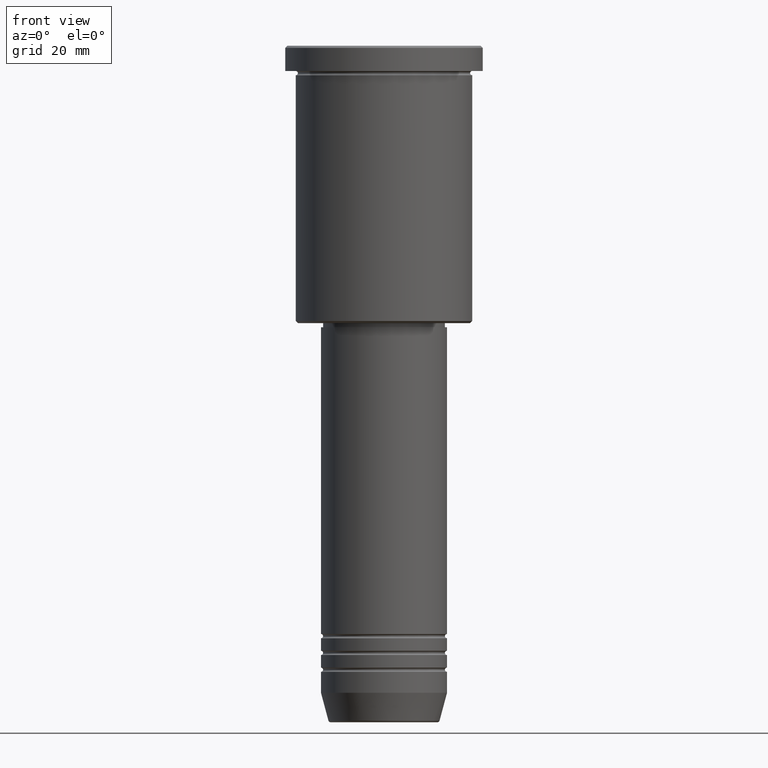
[diagram: clean part render]
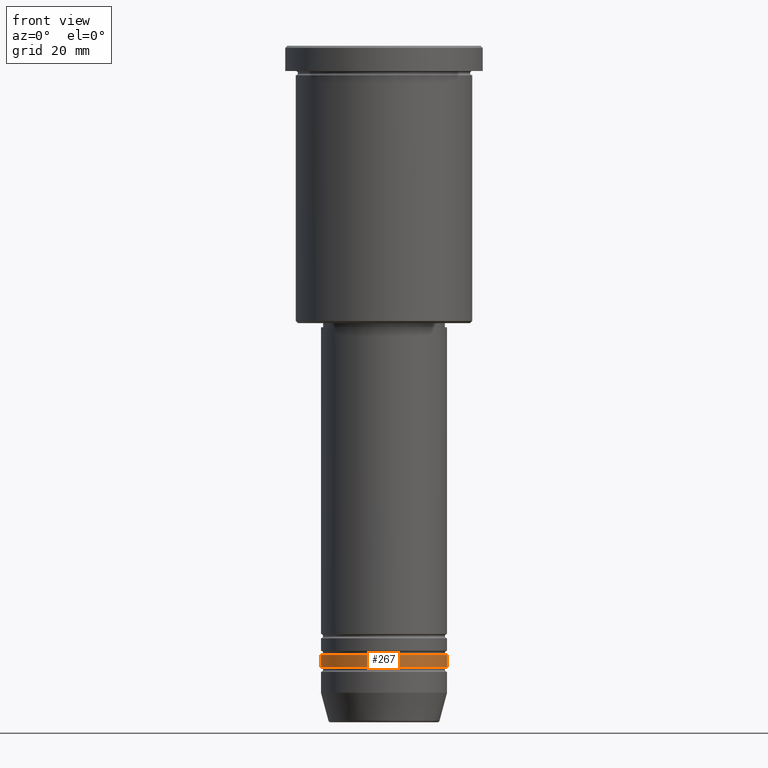
[diagram: same view with one face highlighted and labeled with its STEP entity id]
A machine part, front view. The second image highlights one B-rep face of the part: STEP entity #267.
In plain terms, the highlighted cylindrical surface (partial cylindrical patch) has radius 15 mm, axis along (-0, -0, 1).
Its self-contained STEP definition (entity closure, byte-faithful):
#5 = DIRECTION ( 'NONE',  ( 1.000000000000000000, 0.000000000000000000, 0.000000000000000000 ) ) ;
#25 = ORIENTED_EDGE ( 'NONE', *, *, #338, .F. ) ;
#41 = DIRECTION ( 'NONE',  ( 1.000000000000000000, 0.000000000000000000, 0.000000000000000000 ) ) ;
#83 = FACE_OUTER_BOUND ( 'NONE', #731, .T. ) ;
#100 = DIRECTION ( 'NONE',  ( -0.000000000000000000, -0.000000000000000000, 1.000000000000000000 ) ) ;
#135 = CARTESIAN_POINT ( 'NONE',  ( 15.00000000000000000, 0.000000000000000000, -144.9999999999999147 ) ) ;
#145 = AXIS2_PLACEMENT_3D ( 'NONE', #799, #427, #41 ) ;
#152 = DIRECTION ( 'NONE',  ( 1.000000000000000000, 0.000000000000000000, 0.000000000000000000 ) ) ;
#192 = CARTESIAN_POINT ( 'NONE',  ( -15.00000000000000000, 1.836970198721029589E-15, -144.9999999999999147 ) ) ;
#207 = ORIENTED_EDGE ( 'NONE', *, *, #1142, .T. ) ;
#225 = CIRCLE ( 'NONE', #145, 15.00000000000000000 ) ;
#256 = DIRECTION ( 'NONE',  ( -0.000000000000000000, -0.000000000000000000, 1.000000000000000000 ) ) ;
#267 = ADVANCED_FACE ( 'NONE', ( #83 ), #452, .T. ) ;
#280 = AXIS2_PLACEMENT_3D ( 'NONE', #704, #1072, #152 ) ;
#288 = DIRECTION ( 'NONE',  ( -0.000000000000000000, -0.000000000000000000, 1.000000000000000000 ) ) ;
#327 = AXIS2_PLACEMENT_3D ( 'NONE', #825, #256, #5 ) ;
#338 = EDGE_CURVE ( 'NONE', #990, #1138, #1031, .T. ) ;
#424 = VECTOR ( 'NONE', #100, 1000.000000000000000 ) ;
#427 = DIRECTION ( 'NONE',  ( -0.000000000000000000, -0.000000000000000000, 1.000000000000000000 ) ) ;
#436 = CARTESIAN_POINT ( 'NONE',  ( -15.00000000000000000, 1.836970198721029589E-15, -147.9999999999999147 ) ) ;
#452 = CYLINDRICAL_SURFACE ( 'NONE', #327, 15.00000000000000000 ) ;
#468 = LINE ( 'NONE', #1116, #1093 ) ;
#662 = VERTEX_POINT ( 'NONE', #135 ) ;
#679 = CIRCLE ( 'NONE', #280, 15.00000000000000000 ) ;
#704 = CARTESIAN_POINT ( 'NONE',  ( 0.000000000000000000, 0.000000000000000000, -144.9999999999999147 ) ) ;
#720 = EDGE_CURVE ( 'NONE', #1138, #662, #679, .T. ) ;
#727 = ORIENTED_EDGE ( 'NONE', *, *, #795, .T. ) ;
#731 = EDGE_LOOP ( 'NONE', ( #25, #727, #207, #1034 ) ) ;
#795 = EDGE_CURVE ( 'NONE', #990, #1086, #225, .T. ) ;
#799 = CARTESIAN_POINT ( 'NONE',  ( 0.000000000000000000, 0.000000000000000000, -147.9999999999999147 ) ) ;
#825 = CARTESIAN_POINT ( 'NONE',  ( 0.000000000000000000, 0.000000000000000000, 0.000000000000000000 ) ) ;
#922 = CARTESIAN_POINT ( 'NONE',  ( -15.00000000000000000, 1.836970198721029589E-15, 0.000000000000000000 ) ) ;
#945 = CARTESIAN_POINT ( 'NONE',  ( 15.00000000000000000, 0.000000000000000000, -147.9999999999999147 ) ) ;
#990 = VERTEX_POINT ( 'NONE', #436 ) ;
#1031 = LINE ( 'NONE', #922, #424 ) ;
#1034 = ORIENTED_EDGE ( 'NONE', *, *, #720, .F. ) ;
#1072 = DIRECTION ( 'NONE',  ( -0.000000000000000000, -0.000000000000000000, 1.000000000000000000 ) ) ;
#1086 = VERTEX_POINT ( 'NONE', #945 ) ;
#1093 = VECTOR ( 'NONE', #288, 1000.000000000000000 ) ;
#1116 = CARTESIAN_POINT ( 'NONE',  ( 15.00000000000000000, 0.000000000000000000, 0.000000000000000000 ) ) ;
#1138 = VERTEX_POINT ( 'NONE', #192 ) ;
#1142 = EDGE_CURVE ( 'NONE', #1086, #662, #468, .T. ) ;